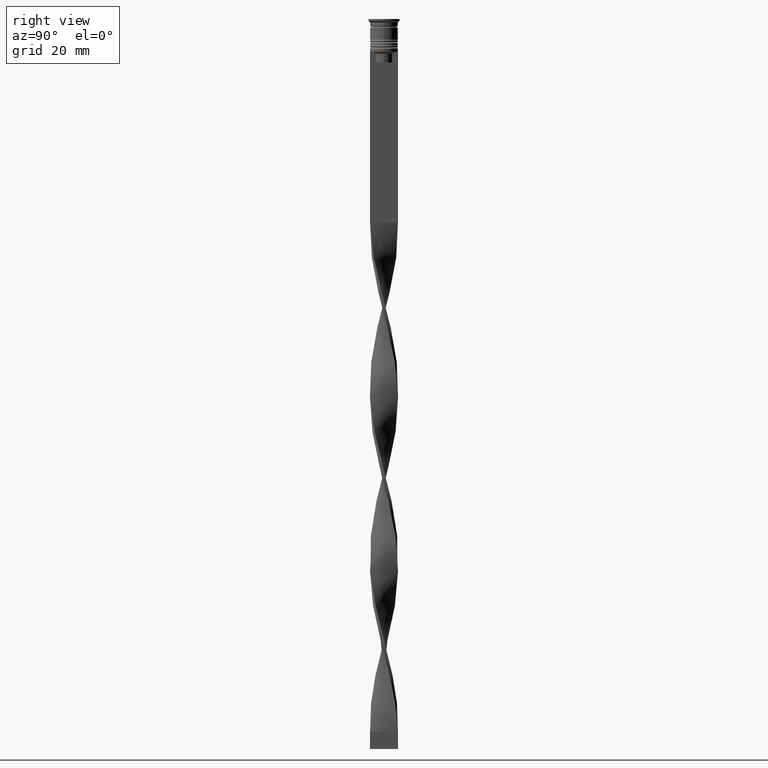
[diagram: clean part render]
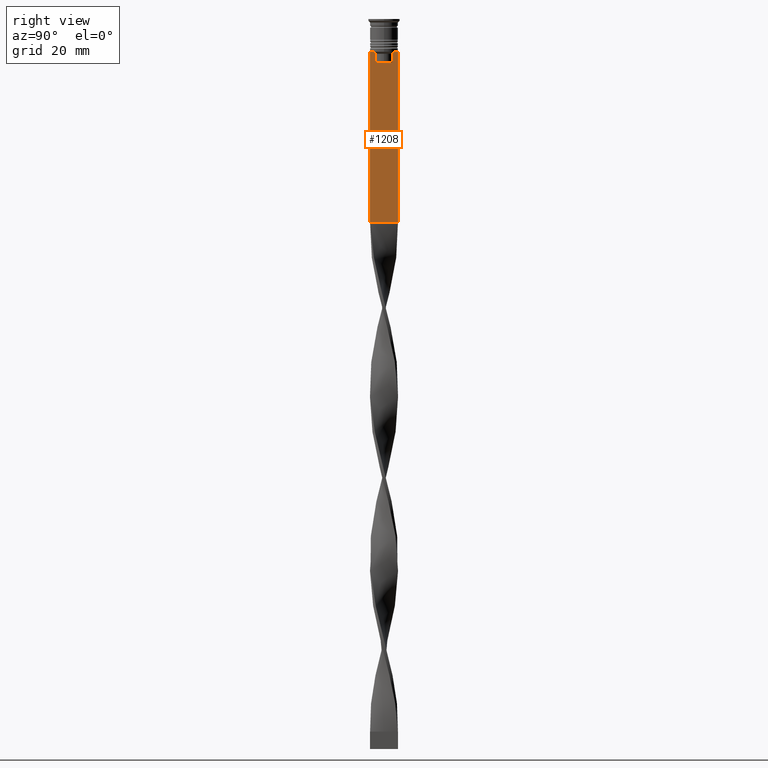
[diagram: same view with one face highlighted and labeled with its STEP entity id]
A machine part, right view. The second image highlights one B-rep face of the part: STEP entity #1208.
In plain terms, the highlighted planar face has unit normal (-1, 0, 0).
Its self-contained STEP definition (entity closure, byte-faithful):
#47 = LINE ( 'NONE', #1318, #2251 ) ;
#86 = CARTESIAN_POINT ( 'NONE',  ( 0.5000000000000000000, 2.347338918861097135, -10.00000000000000000 ) ) ;
#144 = EDGE_LOOP ( 'NONE', ( #1248, #2064, #821, #2056, #256, #3470, #3268, #511, #654, #1227, #3846, #274 ) ) ;
#178 = VECTOR ( 'NONE', #1231, 1000.000000000000000 ) ;
#204 = EDGE_CURVE ( 'NONE', #2699, #3239, #1140, .T. ) ;
#230 = EDGE_CURVE ( 'NONE', #3239, #1853, #602, .T. ) ;
#232 = EDGE_CURVE ( 'NONE', #3248, #3796, #2673, .T. ) ;
#254 = EDGE_CURVE ( 'NONE', #3040, #1129, #3028, .T. ) ;
#256 = ORIENTED_EDGE ( 'NONE', *, *, #3265, .T. ) ;
#266 = DIRECTION ( 'NONE',  ( 0.000000000000000000, 1.000000000000000000, 0.000000000000000000 ) ) ;
#274 = ORIENTED_EDGE ( 'NONE', *, *, #254, .T. ) ;
#307 = DIRECTION ( 'NONE',  ( 0.000000000000000000, -1.000000000000000000, 0.000000000000000000 ) ) ;
#311 = CARTESIAN_POINT ( 'NONE',  ( 0.5000000000000000000, -2.856571371417138572, -9.500000000000000000 ) ) ;
#436 = LINE ( 'NONE', #1653, #3407 ) ;
#511 = ORIENTED_EDGE ( 'NONE', *, *, #1476, .T. ) ;
#602 = LINE ( 'NONE', #1202, #2307 ) ;
#606 = CARTESIAN_POINT ( 'NONE',  ( 0.5000000000000000000, -2.517408374291112416, -9.833662228483172285 ) ) ;
#641 = LINE ( 'NONE', #1258, #2971 ) ;
#654 = ORIENTED_EDGE ( 'NONE', *, *, #204, .T. ) ;
#671 = VECTOR ( 'NONE', #307, 1000.000000000000000 ) ;
#821 = ORIENTED_EDGE ( 'NONE', *, *, #2000, .T. ) ;
#870 = EDGE_CURVE ( 'NONE', #883, #3102, #3051, .T. ) ;
#883 = VERTEX_POINT ( 'NONE', #2134 ) ;
#936 = DIRECTION ( 'NONE',  ( -1.000000000000000000, 0.000000000000000000, 0.000000000000000000 ) ) ;
#957 = LINE ( 'NONE', #2499, #178 ) ;
#1016 = CARTESIAN_POINT ( 'NONE',  ( 0.5000000000000000000, -4.000000000000000000, -1.437742251701450202 ) ) ;
#1121 = VECTOR ( 'NONE', #3242, 1000.000000000000000 ) ;
#1129 = VERTEX_POINT ( 'NONE', #2001 ) ;
#1140 = LINE ( 'NONE', #2714, #3523 ) ;
#1175 = VECTOR ( 'NONE', #2651, 1000.000000000000000 ) ;
#1202 = CARTESIAN_POINT ( 'NONE',  ( 0.5000000000000000000, -4.000000000000000000, -58.50000000000000000 ) ) ;
#1208 = ADVANCED_FACE ( 'NONE', ( #2500 ), #3740, .F. ) ;
#1219 = B_SPLINE_CURVE_WITH_KNOTS ( 'NONE', 3,
 ( #3232, #3812, #1945, #2558 ),
 .UNSPECIFIED., .F., .F.,
 ( 4, 4 ),
 ( 0.004956812174141191595, 0.005670477137898149653 ),
 .UNSPECIFIED. ) ;
#1227 = ORIENTED_EDGE ( 'NONE', *, *, #230, .T. ) ;
#1231 = DIRECTION ( 'NONE',  ( -0.000000000000000000, -0.000000000000000000, 1.000000000000000000 ) ) ;
#1248 = ORIENTED_EDGE ( 'NONE', *, *, #3737, .T. ) ;
#1258 = CARTESIAN_POINT ( 'NONE',  ( 0.5000000000000000000, -4.000000000000000000, -9.500000000000000000 ) ) ;
#1291 = CARTESIAN_POINT ( 'NONE',  ( 0.5000000000000000000, 2.347338918861097135, -12.50000000000000000 ) ) ;
#1318 = CARTESIAN_POINT ( 'NONE',  ( 0.5000000000000000000, -4.000000000000000000, -9.500000000000000000 ) ) ;
#1476 = EDGE_CURVE ( 'NONE', #3827, #2699, #47, .T. ) ;
#1513 = VERTEX_POINT ( 'NONE', #86 ) ;
#1547 = CARTESIAN_POINT ( 'NONE',  ( 0.5000000000000000000, -2.687095498514037839, -9.666937905752043037 ) ) ;
#1583 = CARTESIAN_POINT ( 'NONE',  ( 0.5000000000000000000, -4.000000000000000000, -9.500000000000000000 ) ) ;
#1618 = CARTESIAN_POINT ( 'NONE',  ( 0.5000000000000000000, -4.000000000000000000, -9.500000000000000000 ) ) ;
#1638 = DIRECTION ( 'NONE',  ( 0.000000000000000000, -1.000000000000000000, 0.000000000000000000 ) ) ;
#1653 = CARTESIAN_POINT ( 'NONE',  ( 0.5000000000000000000, 2.347338918861097135, 0.000000000000000000 ) ) ;
#1773 = VECTOR ( 'NONE', #1638, 1000.000000000000000 ) ;
#1782 = DIRECTION ( 'NONE',  ( 0.000000000000000000, 0.000000000000000000, -1.000000000000000000 ) ) ;
#1819 = CARTESIAN_POINT ( 'NONE',  ( 0.5000000000000000000, -4.000000000000000000, -9.500000000000000000 ) ) ;
#1853 = VERTEX_POINT ( 'NONE', #3045 ) ;
#1918 = EDGE_CURVE ( 'NONE', #3780, #1513, #1219, .T. ) ;
#1945 = CARTESIAN_POINT ( 'NONE',  ( 0.5000000000000000000, 2.517407211010872281, -9.833663366238582171 ) ) ;
#2000 = EDGE_CURVE ( 'NONE', #1513, #3248, #436, .T. ) ;
#2001 = CARTESIAN_POINT ( 'NONE',  ( 0.5000000000000000000, 3.867815921162741422, -9.500000000000000000 ) ) ;
#2031 = CARTESIAN_POINT ( 'NONE',  ( 0.5000000000000000000, 4.000000000000000000, -1.437742251701450202 ) ) ;
#2056 = ORIENTED_EDGE ( 'NONE', *, *, #232, .T. ) ;
#2064 = ORIENTED_EDGE ( 'NONE', *, *, #1918, .T. ) ;
#2134 = CARTESIAN_POINT ( 'NONE',  ( 0.5000000000000000000, -2.347338918861097135, -10.00000000000000000 ) ) ;
#2209 = CARTESIAN_POINT ( 'NONE',  ( 0.5000000000000000000, -2.347338918861097135, -12.50000000000000000 ) ) ;
#2251 = VECTOR ( 'NONE', #2529, 1000.000000000000000 ) ;
#2307 = VECTOR ( 'NONE', #266, 1000.000000000000000 ) ;
#2363 = EDGE_CURVE ( 'NONE', #3040, #1853, #3839, .T. ) ;
#2378 = CARTESIAN_POINT ( 'NONE',  ( 0.5000000000000000000, -2.856571371417138572, -9.500000000000000000 ) ) ;
#2402 = CARTESIAN_POINT ( 'NONE',  ( 0.5000000000000000000, 4.000000000000000000, -9.500000000000000000 ) ) ;
#2488 = CARTESIAN_POINT ( 'NONE',  ( 0.5000000000000000000, -3.867815921162741422, -9.500000000000000000 ) ) ;
#2499 = CARTESIAN_POINT ( 'NONE',  ( 0.5000000000000000000, -2.347338918861097135, 0.000000000000000000 ) ) ;
#2500 = FACE_OUTER_BOUND ( 'NONE', #144, .T. ) ;
#2529 = DIRECTION ( 'NONE',  ( 0.000000000000000000, -1.000000000000000000, 0.000000000000000000 ) ) ;
#2558 = CARTESIAN_POINT ( 'NONE',  ( 0.5000000000000000000, 2.347338918861097135, -10.00000000000000000 ) ) ;
#2651 = DIRECTION ( 'NONE',  ( 0.000000000000000000, -1.000000000000000000, 0.000000000000000000 ) ) ;
#2673 = LINE ( 'NONE', #2970, #671 ) ;
#2699 = VERTEX_POINT ( 'NONE', #1583 ) ;
#2714 = CARTESIAN_POINT ( 'NONE',  ( 0.5000000000000000000, -4.000000000000000000, -1.437742251701450202 ) ) ;
#2741 = EDGE_CURVE ( 'NONE', #3102, #3827, #641, .T. ) ;
#2864 = DIRECTION ( 'NONE',  ( 0.000000000000000000, 0.000000000000000000, -1.000000000000000000 ) ) ;
#2970 = CARTESIAN_POINT ( 'NONE',  ( 0.5000000000000000000, 2.399999999999996803, -12.50000000000000000 ) ) ;
#2971 = VECTOR ( 'NONE', #3067, 1000.000000000000000 ) ;
#3028 = LINE ( 'NONE', #1819, #1175 ) ;
#3040 = VERTEX_POINT ( 'NONE', #2402 ) ;
#3045 = CARTESIAN_POINT ( 'NONE',  ( 0.5000000000000000000, 4.000000000000000000, -58.50000000000000000 ) ) ;
#3051 = B_SPLINE_CURVE_WITH_KNOTS ( 'NONE', 3,
 ( #3310, #606, #1547, #311 ),
 .UNSPECIFIED., .F., .F.,
 ( 4, 4 ),
 ( 0.01178336557230038467, 0.01249758354768160280 ),
 .UNSPECIFIED. ) ;
#3067 = DIRECTION ( 'NONE',  ( 0.000000000000000000, -1.000000000000000000, 0.000000000000000000 ) ) ;
#3102 = VERTEX_POINT ( 'NONE', #2378 ) ;
#3141 = CARTESIAN_POINT ( 'NONE',  ( 0.5000000000000000000, 2.856571371417138572, -9.500000000000000000 ) ) ;
#3232 = CARTESIAN_POINT ( 'NONE',  ( 0.5000000000000000000, 2.856571371417138572, -9.500000000000000000 ) ) ;
#3239 = VERTEX_POINT ( 'NONE', #3738 ) ;
#3242 = DIRECTION ( 'NONE',  ( 0.000000000000000000, 0.000000000000000000, -1.000000000000000000 ) ) ;
#3248 = VERTEX_POINT ( 'NONE', #1291 ) ;
#3265 = EDGE_CURVE ( 'NONE', #3796, #883, #957, .T. ) ;
#3268 = ORIENTED_EDGE ( 'NONE', *, *, #2741, .T. ) ;
#3310 = CARTESIAN_POINT ( 'NONE',  ( 0.5000000000000000000, -2.347338918861097135, -10.00000000000000000 ) ) ;
#3407 = VECTOR ( 'NONE', #2864, 1000.000000000000000 ) ;
#3459 = LINE ( 'NONE', #1618, #1773 ) ;
#3470 = ORIENTED_EDGE ( 'NONE', *, *, #870, .T. ) ;
#3523 = VECTOR ( 'NONE', #1782, 1000.000000000000000 ) ;
#3715 = DIRECTION ( 'NONE',  ( 0.000000000000000000, 0.000000000000000000, 1.000000000000000000 ) ) ;
#3737 = EDGE_CURVE ( 'NONE', #1129, #3780, #3459, .T. ) ;
#3738 = CARTESIAN_POINT ( 'NONE',  ( 0.5000000000000000000, -4.000000000000000000, -58.50000000000000000 ) ) ;
#3740 = PLANE ( 'NONE',  #3847 ) ;
#3780 = VERTEX_POINT ( 'NONE', #3141 ) ;
#3796 = VERTEX_POINT ( 'NONE', #2209 ) ;
#3812 = CARTESIAN_POINT ( 'NONE',  ( 0.5000000000000000000, 2.687094542495898075, -9.666938847453439010 ) ) ;
#3827 = VERTEX_POINT ( 'NONE', #2488 ) ;
#3839 = LINE ( 'NONE', #2031, #1121 ) ;
#3846 = ORIENTED_EDGE ( 'NONE', *, *, #2363, .F. ) ;
#3847 = AXIS2_PLACEMENT_3D ( 'NONE', #1016, #936, #3715 ) ;